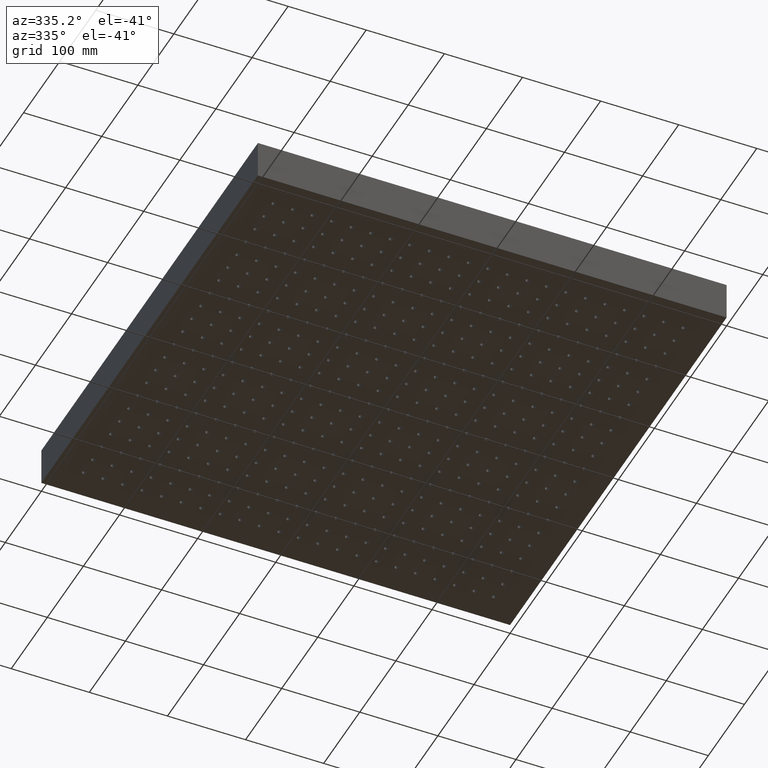
[diagram: clean part render]
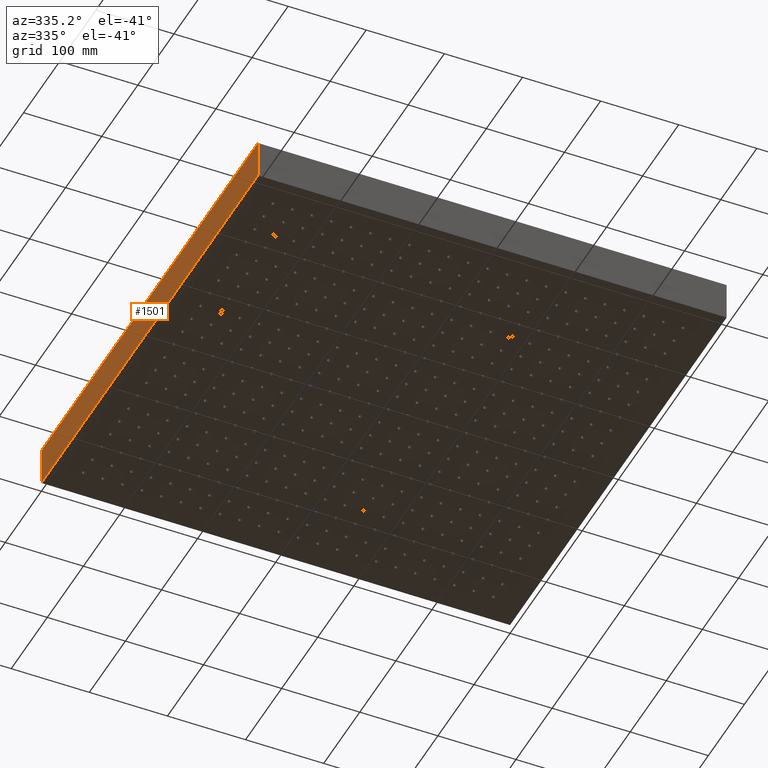
[diagram: same view with one face highlighted and labeled with its STEP entity id]
A machine part, auxiliary view. The second image highlights one B-rep face of the part: STEP entity #1501.
In plain terms, the highlighted planar face has unit normal (1, 0, -0).
Its self-contained STEP definition (entity closure, byte-faithful):
#426 = CARTESIAN_POINT ( 'NONE',  ( -300.0000000000000600, 299.9999999999999400, 0.0000000000000000000 ) ) ;
#1280 = DIRECTION ( 'NONE',  ( -0.0000000000000000000, -0.0000000000000000000, -1.000000000000000000 ) ) ;
#1501 = ADVANCED_FACE ( 'NONE', ( #35103 ), #24391, .F. ) ;
#2242 = VECTOR ( 'NONE', #34554, 1000.000000000000000 ) ;
#3967 = CARTESIAN_POINT ( 'NONE',  ( -299.9999999999998300, -300.0000000000000600, 50.00000000000000000 ) ) ;
#4837 = DIRECTION ( 'NONE',  ( 3.700743415417188600E-016, -1.000000000000000000, 0.0000000000000000000 ) ) ;
#5148 = DIRECTION ( 'NONE',  ( 1.000000000000000000, 3.700743415417189100E-016, -0.0000000000000000000 ) ) ;
#6130 = LINE ( 'NONE', #3967, #33010 ) ;
#6715 = EDGE_CURVE ( 'NONE', #22222, #27321, #17846, .T. ) ;
#9240 = LINE ( 'NONE', #25145, #29598 ) ;
#9250 = EDGE_LOOP ( 'NONE', ( #26648, #9416, #15656, #28846 ) ) ;
#9416 = ORIENTED_EDGE ( 'NONE', *, *, #14094, .F. ) ;
#10988 = CARTESIAN_POINT ( 'NONE',  ( -300.0000000000000600, 299.9999999999999400, 50.00000000000000000 ) ) ;
#11235 = DIRECTION ( 'NONE',  ( -0.0000000000000000000, -0.0000000000000000000, -1.000000000000000000 ) ) ;
#13405 = VERTEX_POINT ( 'NONE', #426 ) ;
#14094 = EDGE_CURVE ( 'NONE', #27321, #31115, #6130, .T. ) ;
#15123 = CARTESIAN_POINT ( 'NONE',  ( -300.0000000000000600, 299.9999999999999400, 50.00000000000000000 ) ) ;
#15656 = ORIENTED_EDGE ( 'NONE', *, *, #6715, .F. ) ;
#15935 = CARTESIAN_POINT ( 'NONE',  ( -300.0000000000000600, 299.9999999999999400, 50.00000000000000000 ) ) ;
#16800 = CARTESIAN_POINT ( 'NONE',  ( -299.9999999999998300, -300.0000000000000600, 0.0000000000000000000 ) ) ;
#17846 = LINE ( 'NONE', #15123, #2242 ) ;
#18523 = CARTESIAN_POINT ( 'NONE',  ( -300.0000000000000600, 299.9999999999999400, 0.0000000000000000000 ) ) ;
#18783 = LINE ( 'NONE', #18523, #32664 ) ;
#20019 = EDGE_CURVE ( 'NONE', #13405, #31115, #18783, .T. ) ;
#20947 = AXIS2_PLACEMENT_3D ( 'NONE', #15935, #5148, #24520 ) ;
#22222 = VERTEX_POINT ( 'NONE', #10988 ) ;
#22572 = CARTESIAN_POINT ( 'NONE',  ( -299.9999999999998300, -300.0000000000000600, 50.00000000000000000 ) ) ;
#24391 = PLANE ( 'NONE',  #20947 ) ;
#24520 = DIRECTION ( 'NONE',  ( -3.700743415417189100E-016, 1.000000000000000000, 0.0000000000000000000 ) ) ;
#25145 = CARTESIAN_POINT ( 'NONE',  ( -300.0000000000000600, 299.9999999999999400, 50.00000000000000000 ) ) ;
#26648 = ORIENTED_EDGE ( 'NONE', *, *, #20019, .T. ) ;
#27321 = VERTEX_POINT ( 'NONE', #22572 ) ;
#28846 = ORIENTED_EDGE ( 'NONE', *, *, #32937, .T. ) ;
#29598 = VECTOR ( 'NONE', #11235, 1000.000000000000000 ) ;
#31115 = VERTEX_POINT ( 'NONE', #16800 ) ;
#32664 = VECTOR ( 'NONE', #4837, 1000.000000000000000 ) ;
#32937 = EDGE_CURVE ( 'NONE', #22222, #13405, #9240, .T. ) ;
#33010 = VECTOR ( 'NONE', #1280, 1000.000000000000000 ) ;
#34554 = DIRECTION ( 'NONE',  ( 3.700743415417188600E-016, -1.000000000000000000, 0.0000000000000000000 ) ) ;
#35103 = FACE_OUTER_BOUND ( 'NONE', #9250, .T. ) ;